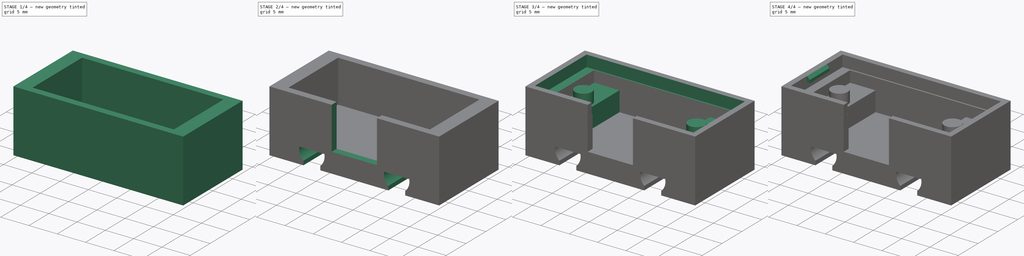
[diagram: build sequence overview — one tinted view per stage of 4, left to right]
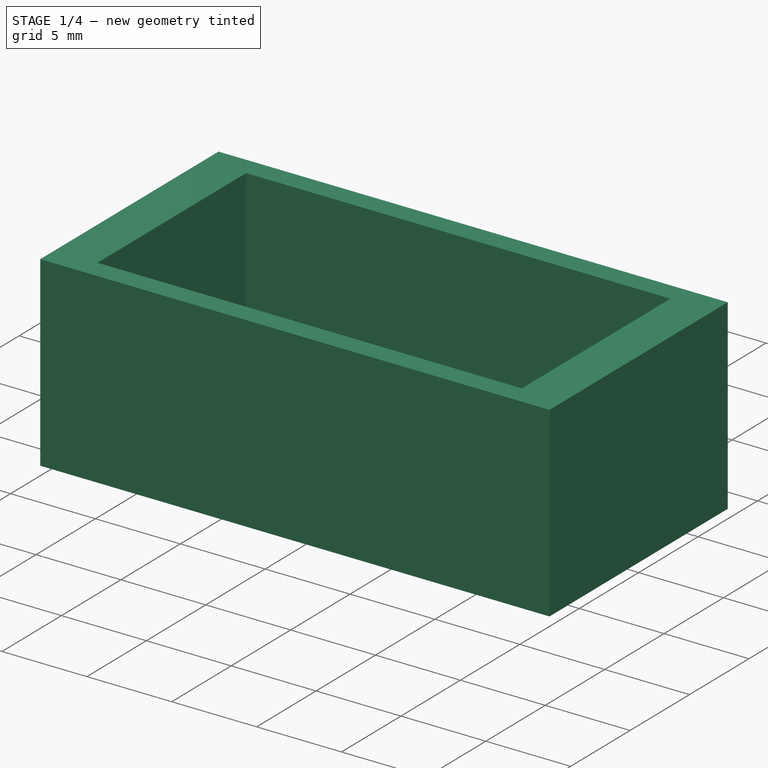
[diagram: stage 1 of 4 — iso view after this stage's code; geometry added in this stage tinted green]
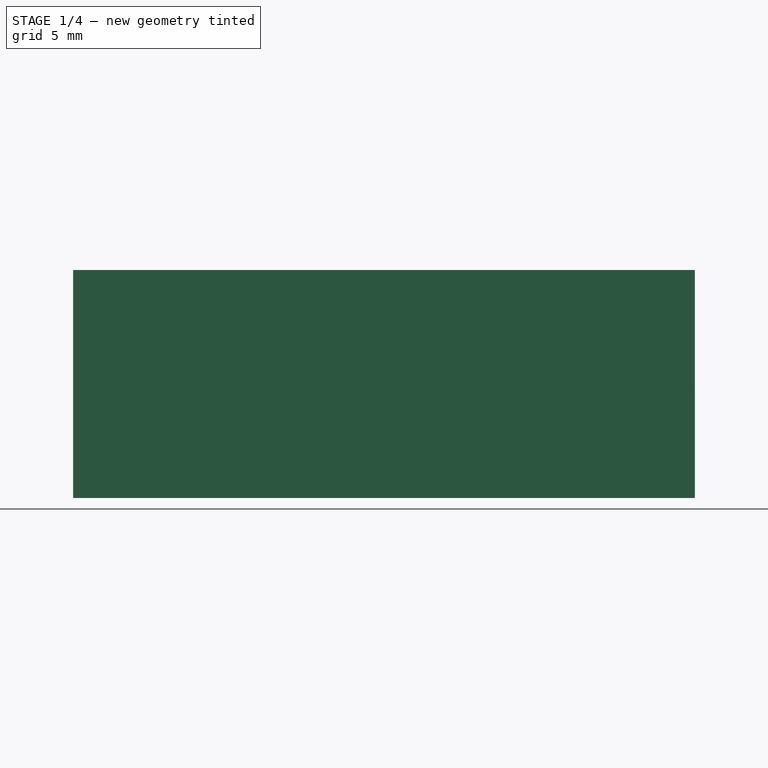
[diagram: stage 1 of 4 — front view after this stage's code; geometry added in this stage tinted green]
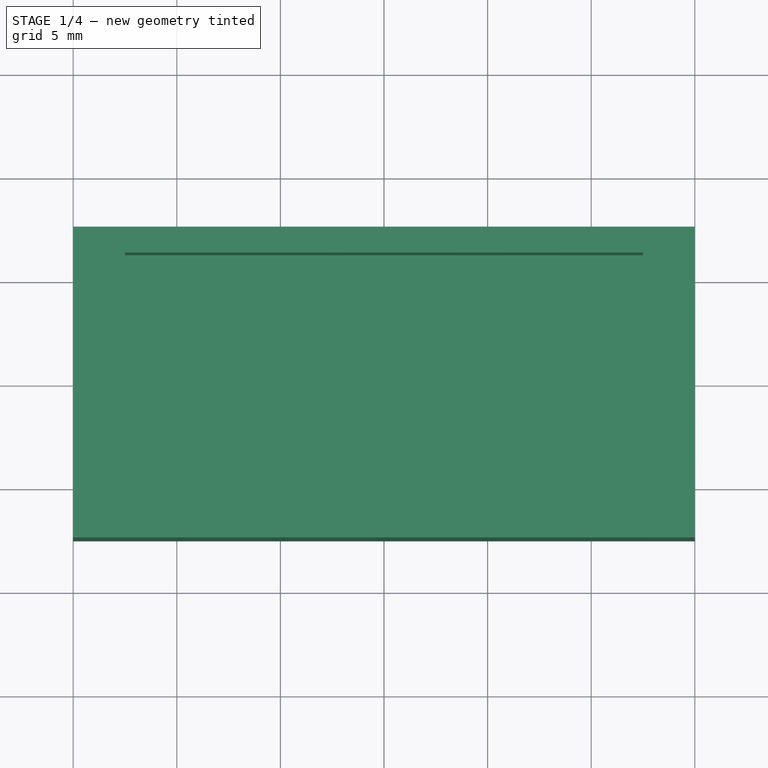
[diagram: stage 1 of 4 — top view after this stage's code; geometry added in this stage tinted green]
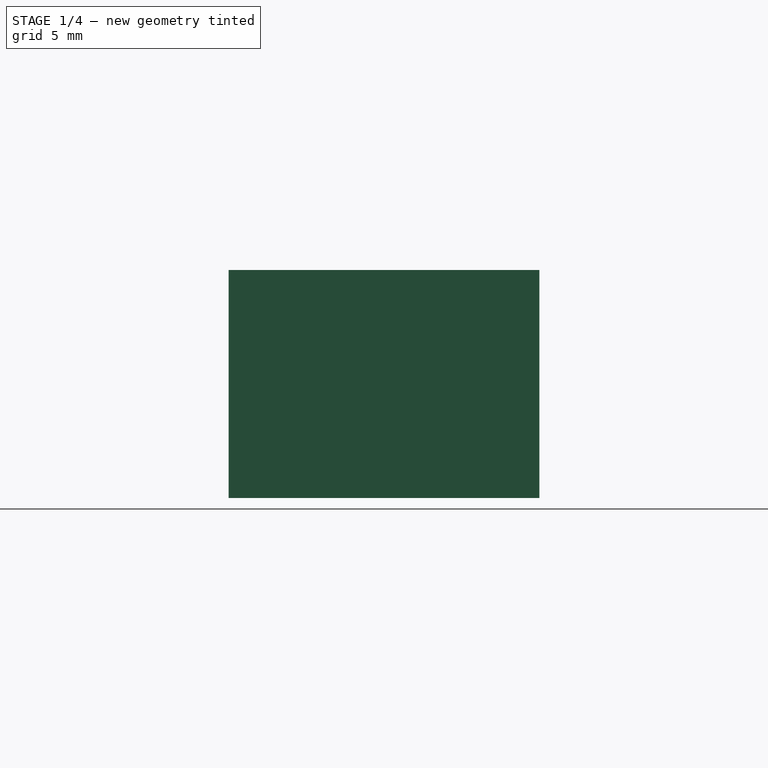
[diagram: stage 1 of 4 — right view after this stage's code; geometry added in this stage tinted green]
FCSTD DOCUMENT  (FreeCAD 0.16R6710 (Git))
Label: bottom
License: All rights reserved
LicenseURL: http://en.wikipedia.org/wiki/All_rights_reserved
objects: Sketcher::SketchObject×8, PartDesign::Pad×5, PartDesign::Pocket×3, PartDesign::LinearPattern×1, PartDesign::Chamfer×1
note: 26 computed .brp shape members not serialized (recipe doc carries the construction recipe); baked Part::Feature solids carry a one-line shape summary decoded from their .brp

FEATURE [Sketcher::SketchObject] Sketch
  sketch-geometry (4):
    g0: LineSegment StartX=-15 StartY=7.5 StartZ=0 EndX=15 EndY=7.5 EndZ=0
    g1: LineSegment StartX=15 StartY=7.5 StartZ=0 EndX=15 EndY=-7.5 EndZ=0
    g2: LineSegment StartX=15 StartY=-7.5 StartZ=0 EndX=-15 EndY=-7.5 EndZ=0
    g3: LineSegment StartX=-15 StartY=-7.5 StartZ=0 EndX=-15 EndY=7.5 EndZ=0
  constraints (12):
    c: Coincident(g0,g1)
    c: Coincident(g1,g2)
    c: Coincident(g2,g3)
    c: Coincident(g3,g0)
    c: Horizontal(g0)
    c: Horizontal(g2)
    c: Vertical(g1)
    c: Vertical(g3)
    c: Symmetric(g0,g0,g-2)
    c: Symmetric(g0,g2,g-1)
    c: DistanceX(g0,g0) = 30
    c: DistanceY(g3,g3) = 15
FEATURE [PartDesign::Pad] Pad
  Length = 3.5
  Length2 = 100
  Sketch = -> Sketch
  Type = 0
FEATURE [Sketcher::SketchObject] Sketch001
  Placement = pos=(0,0,3.5) rot=(0,0,1;0rad)
  Support = -> Pad [Face6]
  sketch-geometry (8):
    g0: LineSegment StartX=-12.5 StartY=6.25 StartZ=0 EndX=12.5 EndY=6.25 EndZ=0
    g1: LineSegment StartX=12.5 StartY=6.25 StartZ=0 EndX=12.5 EndY=-6.25 EndZ=0
    g2: LineSegment StartX=12.5 StartY=-6.25 StartZ=0 EndX=-12.5 EndY=-6.25 EndZ=0
    g3: LineSegment StartX=-12.5 StartY=-6.25 StartZ=0 EndX=-12.5 EndY=6.25 EndZ=0
    g4: LineSegment StartX=-15 StartY=7.5 StartZ=0 EndX=15 EndY=7.5 EndZ=0
    g5: LineSegment StartX=15 StartY=7.5 StartZ=0 EndX=15 EndY=-7.5 EndZ=0
    g6: LineSegment StartX=15 StartY=-7.5 StartZ=0 EndX=-15 EndY=-7.5 EndZ=0
    g7: LineSegment StartX=-15 StartY=-7.5 StartZ=0 EndX=-15 EndY=7.5 EndZ=0
  constraints (24):
    c: Coincident(g0,g1)
    c: Coincident(g1,g2)
    c: Coincident(g2,g3)
    c: Coincident(g3,g0)
    c: Horizontal(g0)
    c: Horizontal(g2)
    c: Vertical(g1)
    c: Vertical(g3)
    c: Coincident(g4,g5)
    c: Coincident(g5,g6)
    c: Coincident(g6,g7)
    c: Coincident(g7,g4)
    c: Horizontal(g4)
    c: Horizontal(g6)
    c: Vertical(g5)
    c: Vertical(g7)
    c: Symmetric(g4,g4,g-2)
    c: Symmetric(g0,g0,g-2)
    c: Symmetric(g4,g6,g-1)
    c: Symmetric(g0,g2,g-1)
    c: DistanceX(g4,g4) = 30
    c: DistanceY(g7,g7) = 15
    c: DistanceX(g0,g0) = 25
    c: DistanceY(g3,g3) = 12.5
FEATURE [PartDesign::Pad] Pad001
  Length = 7.5
  Length2 = 100
  Sketch = -> Sketch001
  Type = 0
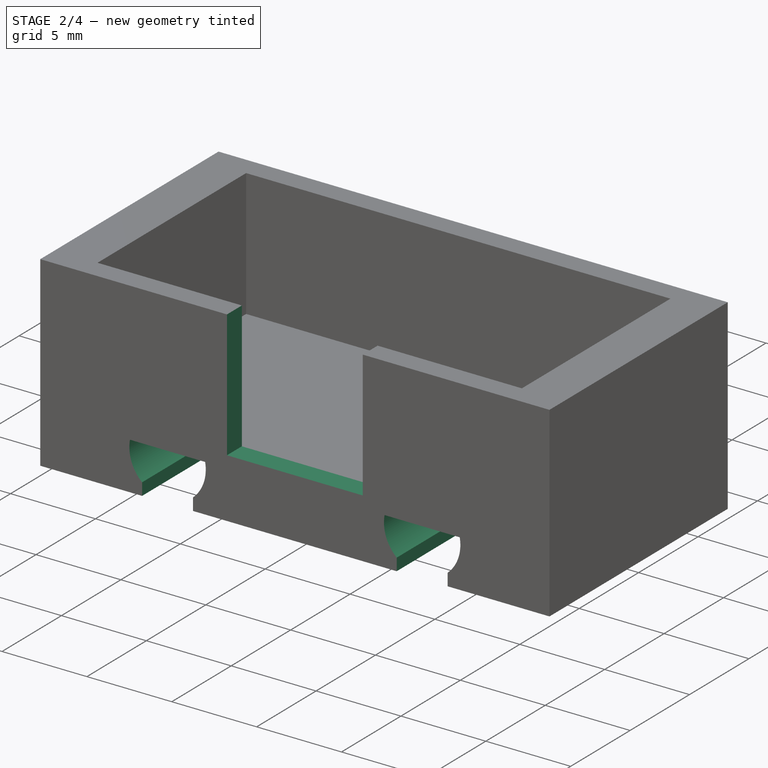
[diagram: stage 2 of 4 — iso view after this stage's code; geometry added in this stage tinted green]
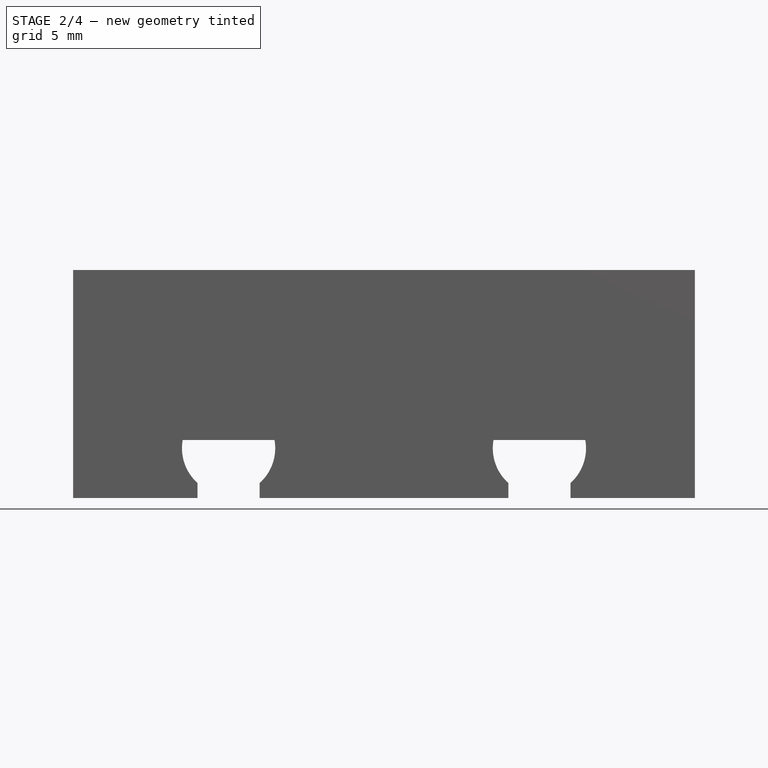
[diagram: stage 2 of 4 — front view after this stage's code; geometry added in this stage tinted green]
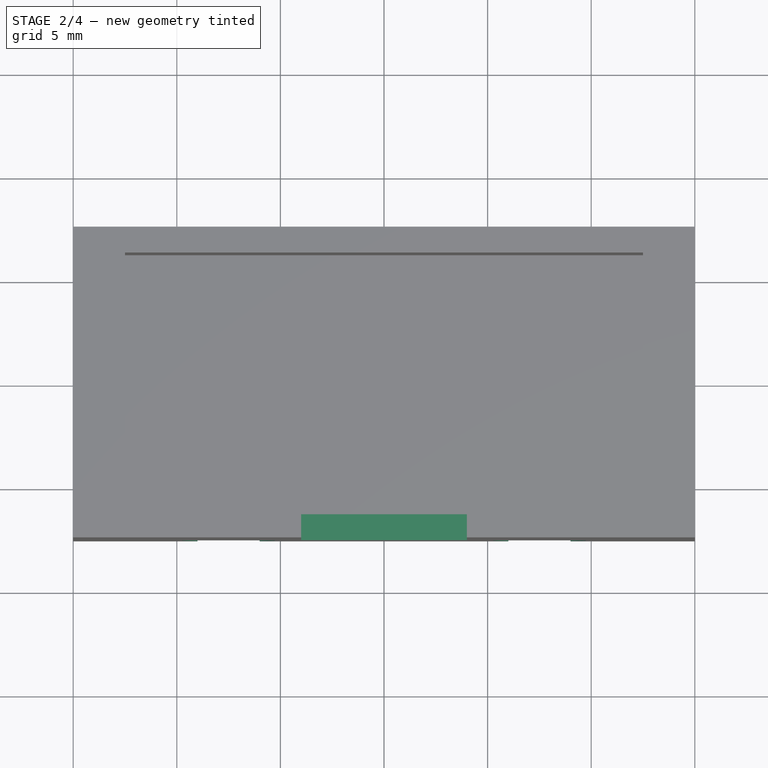
[diagram: stage 2 of 4 — top view after this stage's code; geometry added in this stage tinted green]
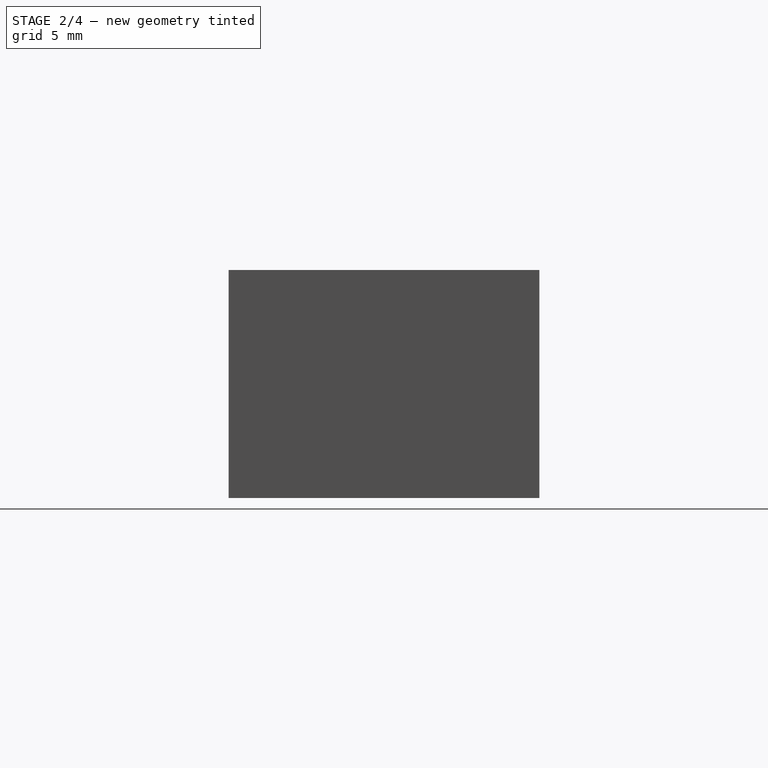
[diagram: stage 2 of 4 — right view after this stage's code; geometry added in this stage tinted green]
FEATURE [Sketcher::SketchObject] Sketch002
  Placement = pos=(0,-7.5,0) rot=(1,0,0;1.5708rad)
  Support = -> Pad001 [Face4]
  sketch-geometry (7):
    g0: LineSegment StartX=-9 StartY=0.722949 StartZ=0 EndX=-9 EndY=0 EndZ=0
    g1: LineSegment StartX=-9 StartY=0 StartZ=0 EndX=-6 EndY=0 EndZ=0
    g2: LineSegment StartX=-6 StartY=0 StartZ=0 EndX=-6 EndY=0.722949 EndZ=0
    g3: ArcOfCircle CenterX=-7.5 CenterY=2.4 CenterZ=0 NormalX=0 NormalY=0 NormalZ=1 Radius=2.25 StartAngle=2.96286 EndAngle=3.98266
    g4: ArcOfCircle CenterX=-7.5 CenterY=2.4 CenterZ=0 NormalX=0 NormalY=0 NormalZ=1 Radius=2.25 StartAngle=5.44212 EndAngle=6.46191
    g5: LineSegment StartX=-9.71416 StartY=2.8 StartZ=0 EndX=-5.28584 EndY=2.8 EndZ=0
    g6: LineSegment [constr] StartX=-7.5 StartY=2.4 StartZ=0 EndX=-7.5 EndY=0 EndZ=0
  constraints (22):
    c: PointOnObject(g0,g-1)
    c: Vertical(g0)
    c: Coincident(g1,g0)
    c: PointOnObject(g1,g-1)
    c: Coincident(g2,g1)
    c: Vertical(g2)
    c: Coincident(g3,g0)
    c: Coincident(g4,g3)
    c: Coincident(g2,g4)
    c: Coincident(g5,g3)
    c: Coincident(g5,g4)
    c: Horizontal(g5)
    c: Coincident(g6,g3)
    c: PointOnObject(g6,g1)
    c: Vertical(g6)
    c: Symmetric(g0,g1,g6)
    c: DistanceY(g6,g6) = 2.4
    c: Radius(g3) = 2.25
    c: Equal(g3,g4)
    c: DistanceX(g1,g1) = 3
    c: DistanceX(g6,g-1) = 7.5
    c: DistanceY(g1,g4) = 2.8
FEATURE [PartDesign::Pocket] Pocket
  Length = 5
  Sketch = -> Sketch002
  Type = 1
FEATURE [PartDesign::LinearPattern] LinearPattern
  Direction = -> Sketch002 [H_Axis]
  Length = 15
  Occurrences = 2
  Originals = -> [Pocket]
FEATURE [Sketcher::SketchObject] Sketch003
  Placement = pos=(0,-7.5,0) rot=(1,0,0;1.5708rad)
  Support = -> LinearPattern [Face19]
  sketch-geometry (4):
    g0: LineSegment StartX=-4 StartY=11 StartZ=0 EndX=4 EndY=11 EndZ=0
    g1: LineSegment StartX=4 StartY=11 StartZ=0 EndX=4 EndY=3.5 EndZ=0
    g2: LineSegment StartX=4 StartY=3.5 StartZ=0 EndX=-4 EndY=3.5 EndZ=0
    g3: LineSegment StartX=-4 StartY=3.5 StartZ=0 EndX=-4 EndY=11 EndZ=0
  constraints (12):
    c: Coincident(g0,g1)
    c: Coincident(g1,g2)
    c: Coincident(g2,g3)
    c: Coincident(g3,g0)
    c: Horizontal(g0)
    c: Horizontal(g2)
    c: Vertical(g1)
    c: Vertical(g3)
    c: Symmetric(g0,g0,g-2)
    c: DistanceX(g0,g0) = 8
    c: DistanceY(g-1,g1) = 3.5
    c: DistanceY(g1,g1) = 7.5
FEATURE [PartDesign::Pocket] Pocket001
  Length = 5
  Sketch = -> Sketch003
  Type = 2
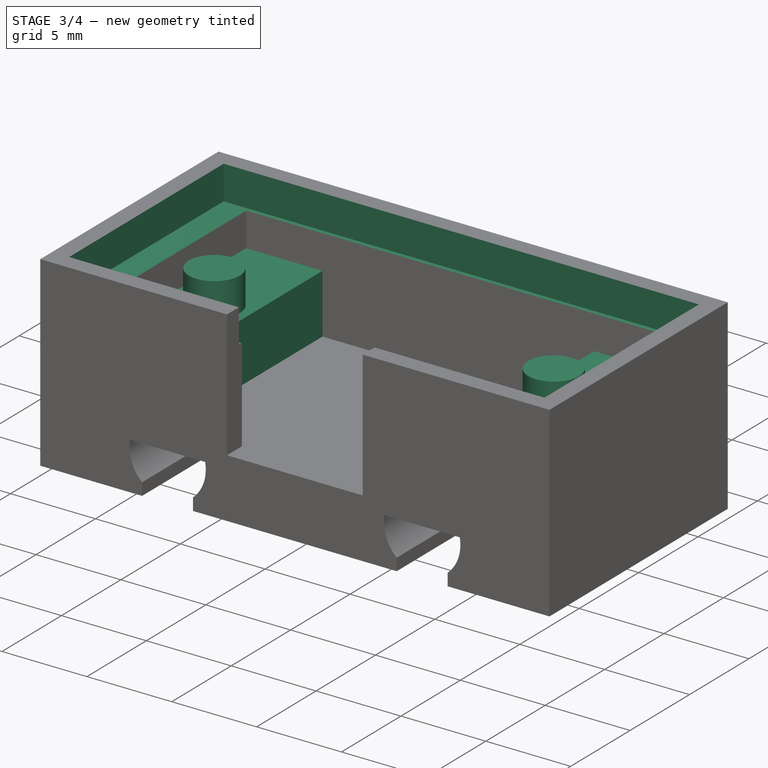
[diagram: stage 3 of 4 — iso view after this stage's code; geometry added in this stage tinted green]
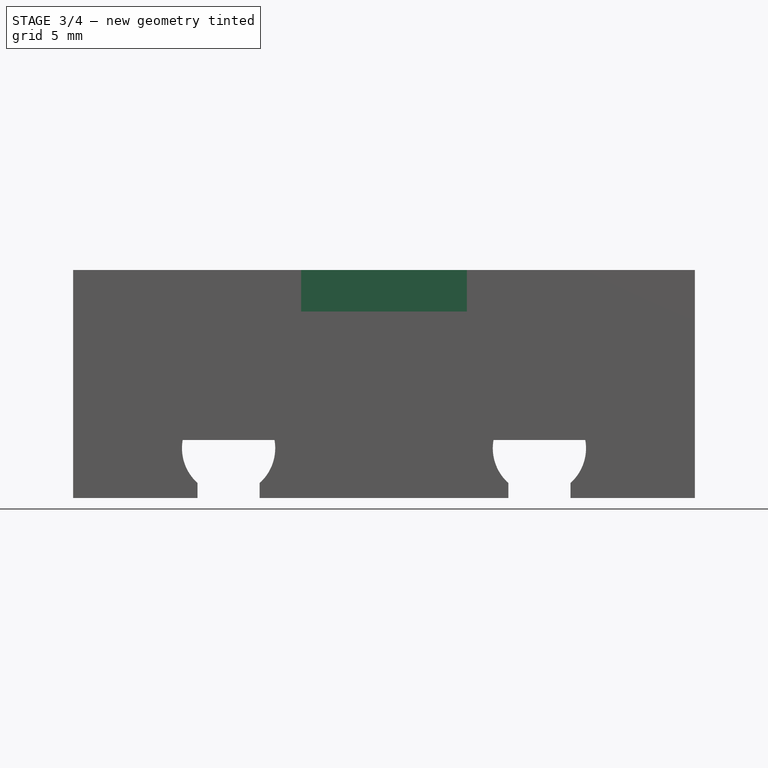
[diagram: stage 3 of 4 — front view after this stage's code; geometry added in this stage tinted green]
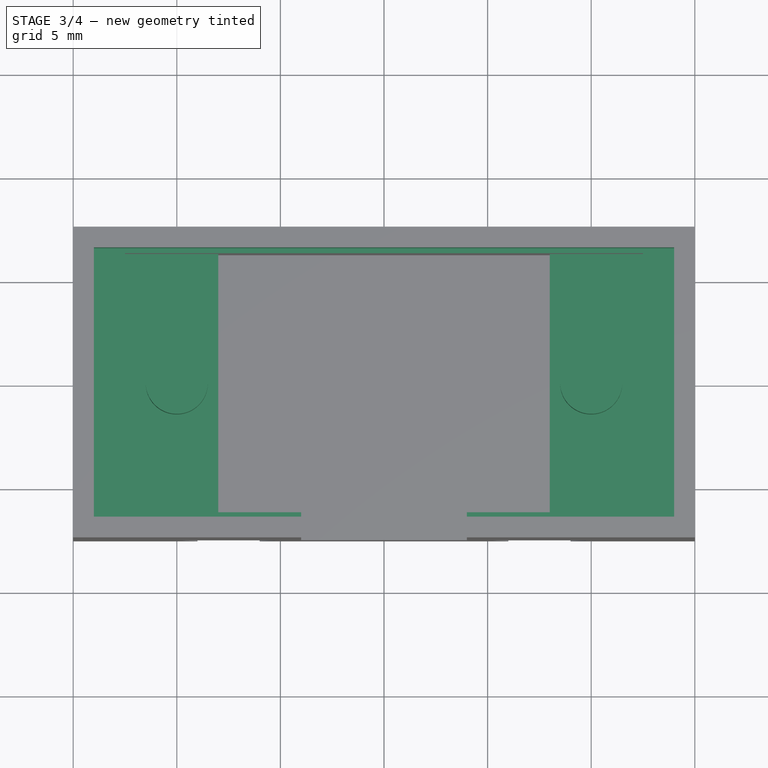
[diagram: stage 3 of 4 — top view after this stage's code; geometry added in this stage tinted green]
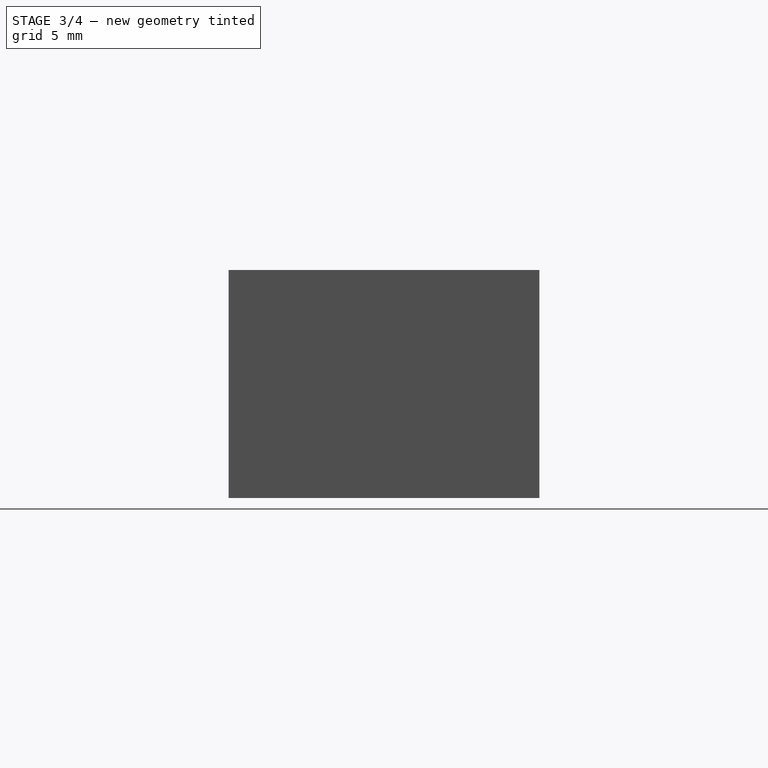
[diagram: stage 3 of 4 — right view after this stage's code; geometry added in this stage tinted green]
FEATURE [Sketcher::SketchObject] Sketch004
  Placement = pos=(0,0,3.5) rot=(0,0,1;0rad)
  Support = -> Pocket001 [Face27]
  sketch-geometry (8):
    g0: LineSegment StartX=-12.5 StartY=6.25 StartZ=0 EndX=-8 EndY=6.25 EndZ=0
    g1: LineSegment StartX=-8 StartY=6.25 StartZ=0 EndX=-8 EndY=-6.25 EndZ=0
    g2: LineSegment StartX=-8 StartY=-6.25 StartZ=0 EndX=-12.5 EndY=-6.25 EndZ=0
    g3: LineSegment StartX=-12.5 StartY=-6.25 StartZ=0 EndX=-12.5 EndY=6.25 EndZ=0
    g4: LineSegment StartX=8 StartY=6.25 StartZ=0 EndX=12.5 EndY=6.25 EndZ=0
    g5: LineSegment StartX=12.5 StartY=6.25 StartZ=0 EndX=12.5 EndY=-6.25 EndZ=0
    g6: LineSegment StartX=12.5 StartY=-6.25 StartZ=0 EndX=8 EndY=-6.25 EndZ=0
    g7: LineSegment StartX=8 StartY=-6.25 StartZ=0 EndX=8 EndY=6.25 EndZ=0
  constraints (23):
    c: Coincident(g0,g1)
    c: Coincident(g1,g2)
    c: Coincident(g2,g3)
    c: Coincident(g3,g0)
    c: Horizontal(g0)
    c: Horizontal(g2)
    c: Vertical(g1)
    c: Vertical(g3)
    c: Coincident(g4,g5)
    c: Coincident(g5,g6)
    c: Coincident(g6,g7)
    c: Coincident(g7,g4)
    c: Horizontal(g4)
    c: Horizontal(g6)
    c: Vertical(g5)
    c: Vertical(g7)
    c: Symmetric(g1,g0,g-1)
    c: Symmetric(g0,g4,g-2)
    c: Symmetric(g6,g4,g-1)
    c: Symmetric(g0,g4,g-2)
    c: DistanceX(g0,g4) = 25
    c: DistanceY(g3,g3) = 12.5
    c: DistanceX(g0,g4) = 16
FEATURE [PartDesign::Pad] Pad002
  Length = 3.5
  Length2 = 100
  Sketch = -> Sketch004
  Type = 0
FEATURE [Sketcher::SketchObject] Sketch005
  Placement = pos=(0,0,7) rot=(0,0,1;0rad)
  Support = -> Pad002 [Face36]
  sketch-geometry (2):
    g0: Circle CenterX=-10 CenterY=0 CenterZ=0 NormalX=0 NormalY=0 NormalZ=1 Radius=1.5
    g1: Circle CenterX=10 CenterY=0 CenterZ=0 NormalX=0 NormalY=0 NormalZ=1 Radius=1.5
  constraints (6):
    c: PointOnObject(g0,g-1)
    c: PointOnObject(g1,g-1)
    c: Radius(g0) = 1.5
    c: Equal(g0,g1)
    c: Symmetric(g0,g1,g-2)
    c: DistanceX(g0,g1) = 20
FEATURE [PartDesign::Pad] Pad003
  Length = 2
  Length2 = 100
  Sketch = -> Sketch005
  Type = 0
FEATURE [Sketcher::SketchObject] Sketch006
  Placement = pos=(0,0,11) rot=(0,0,1;0rad)
  Support = -> Pad003 [Face23]
  sketch-geometry (4):
    g0: LineSegment StartX=-14 StartY=6.5 StartZ=0 EndX=14 EndY=6.5 EndZ=0
    g1: LineSegment StartX=14 StartY=6.5 StartZ=0 EndX=14 EndY=-6.5 EndZ=0
    g2: LineSegment StartX=14 StartY=-6.5 StartZ=0 EndX=-14 EndY=-6.5 EndZ=0
    g3: LineSegment StartX=-14 StartY=-6.5 StartZ=0 EndX=-14 EndY=6.5 EndZ=0
  constraints (12):
    c: Coincident(g0,g1)
    c: Coincident(g1,g2)
    c: Coincident(g2,g3)
    c: Coincident(g3,g0)
    c: Horizontal(g0)
    c: Horizontal(g2)
    c: Vertical(g1)
    c: Vertical(g3)
    c: Symmetric(g0,g0,g-2)
    c: Symmetric(g0,g2,g-1)
    c: DistanceX(g0,g0) = 28
    c: DistanceY(g3,g3) = 13
FEATURE [PartDesign::Pocket] Pocket002
  Length = 2
  Sketch = -> Sketch006
  Type = 0
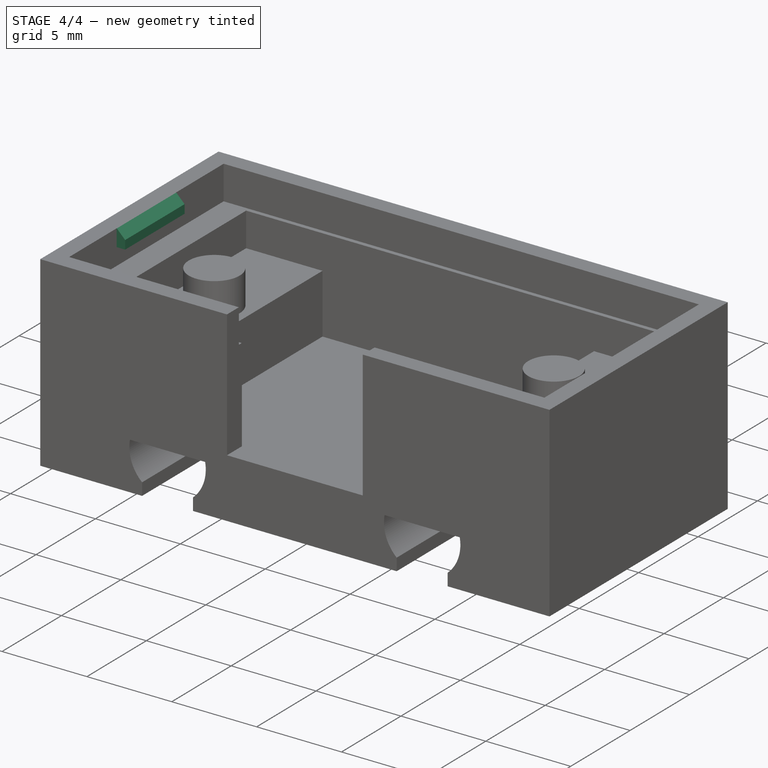
[diagram: stage 4 of 4 — iso view after this stage's code; geometry added in this stage tinted green]
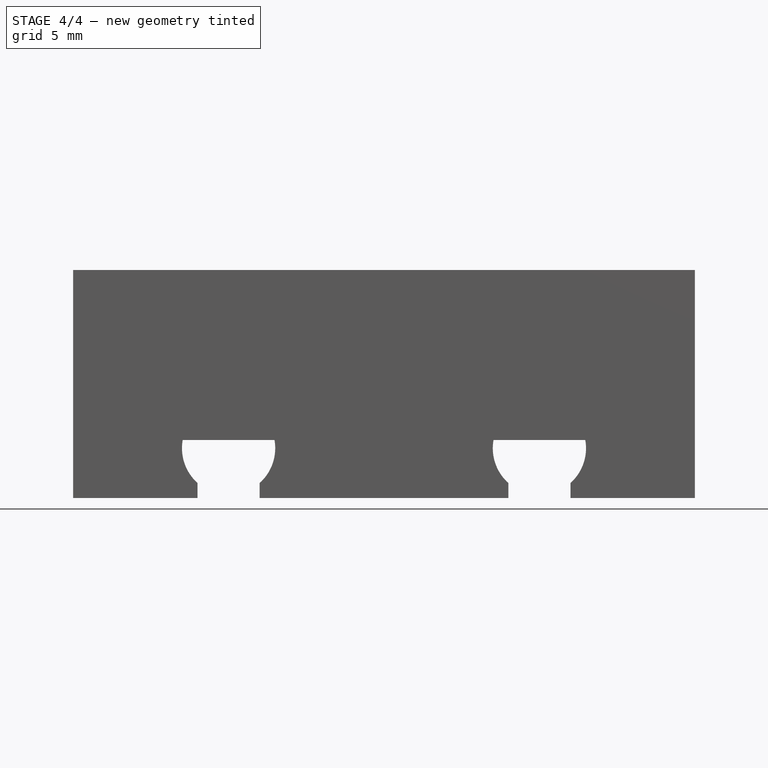
[diagram: stage 4 of 4 — front view after this stage's code; geometry added in this stage tinted green]
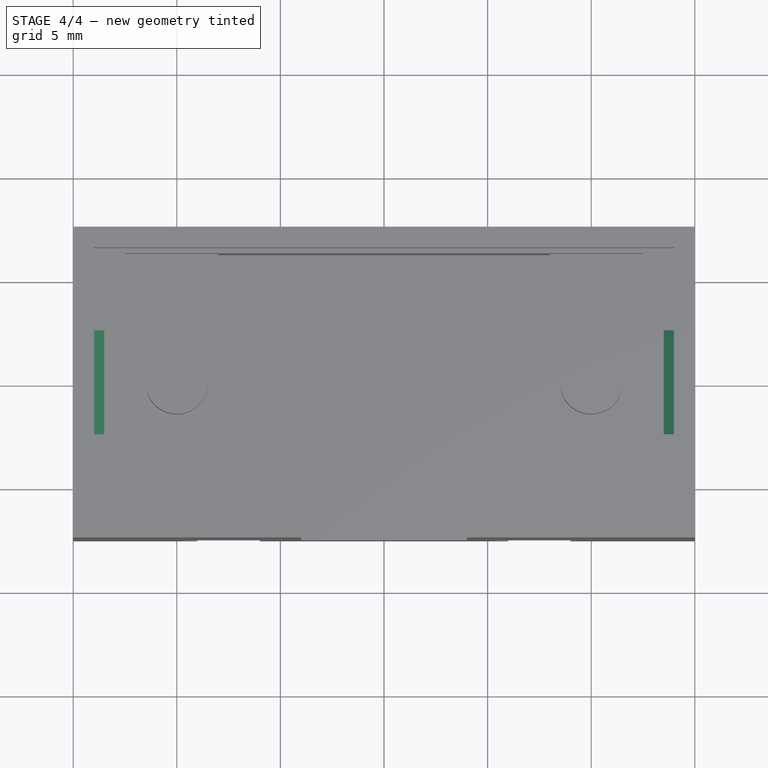
[diagram: stage 4 of 4 — top view after this stage's code; geometry added in this stage tinted green]
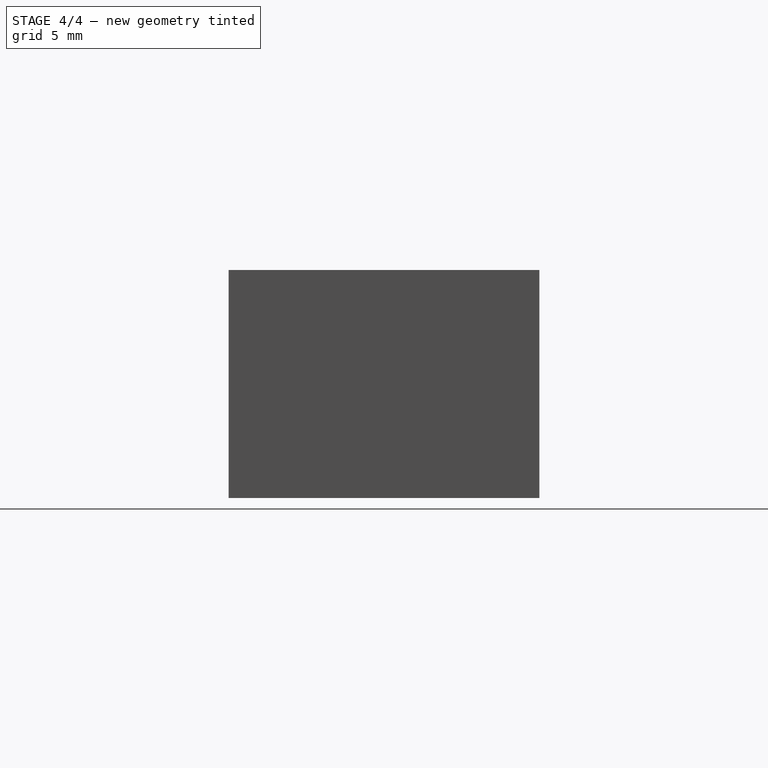
[diagram: stage 4 of 4 — right view after this stage's code; geometry added in this stage tinted green]
FEATURE [Sketcher::SketchObject] Sketch007
  Placement = pos=(0,0,11) rot=(0,0,1;0rad)
  Support = -> Pocket002 [Face23]
  sketch-geometry (8):
    g0: LineSegment StartX=-14 StartY=2.5 StartZ=0 EndX=-13.5 EndY=2.5 EndZ=0
    g1: LineSegment StartX=-13.5 StartY=2.5 StartZ=0 EndX=-13.5 EndY=-2.5 EndZ=0
    g2: LineSegment StartX=-13.5 StartY=-2.5 StartZ=0 EndX=-14 EndY=-2.5 EndZ=0
    g3: LineSegment StartX=-14 StartY=-2.5 StartZ=0 EndX=-14 EndY=2.5 EndZ=0
    g4: LineSegment StartX=13.5 StartY=2.5 StartZ=0 EndX=14 EndY=2.5 EndZ=0
    g5: LineSegment StartX=14 StartY=2.5 StartZ=0 EndX=14 EndY=-2.5 EndZ=0
    g6: LineSegment StartX=14 StartY=-2.5 StartZ=0 EndX=13.5 EndY=-2.5 EndZ=0
    g7: LineSegment StartX=13.5 StartY=-2.5 StartZ=0 EndX=13.5 EndY=2.5 EndZ=0
  constraints (22):
    c: Coincident(g0,g1)
    c: Coincident(g1,g2)
    c: Coincident(g2,g3)
    c: Coincident(g3,g0)
    c: Horizontal(g0)
    c: Horizontal(g2)
    c: Vertical(g1)
    c: Vertical(g3)
    c: Coincident(g4,g5)
    c: Coincident(g5,g6)
    c: Coincident(g6,g7)
    c: Coincident(g7,g4)
    c: Horizontal(g4)
    c: Horizontal(g6)
    c: Vertical(g5)
    c: Vertical(g7)
    c: DistanceX(g0,g0) = 0.5
    c: DistanceY(g3,g3) = 5
    c: Symmetric(g0,g4,g-2)
    c: Symmetric(g2,g5,g-2)
    c: Symmetric(g0,g2,g-1)
    c: DistanceX(g0,g4) = 28
FEATURE [PartDesign::Pad] Pad004
  Length = 1
  Length2 = 100
  Reversed = true
  Sketch = -> Sketch007
  Type = 0
FEATURE [PartDesign::Chamfer] Chamfer
  Base = -> Pad004 [Edge102,Edge105]
  Size = 0.49
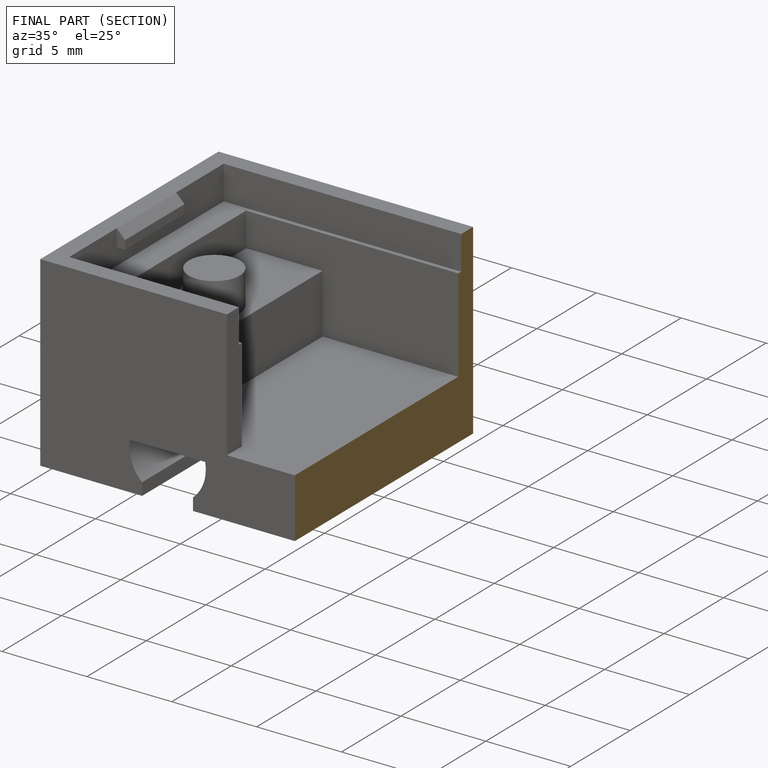
[diagram: finished part — half-section view (interior)]
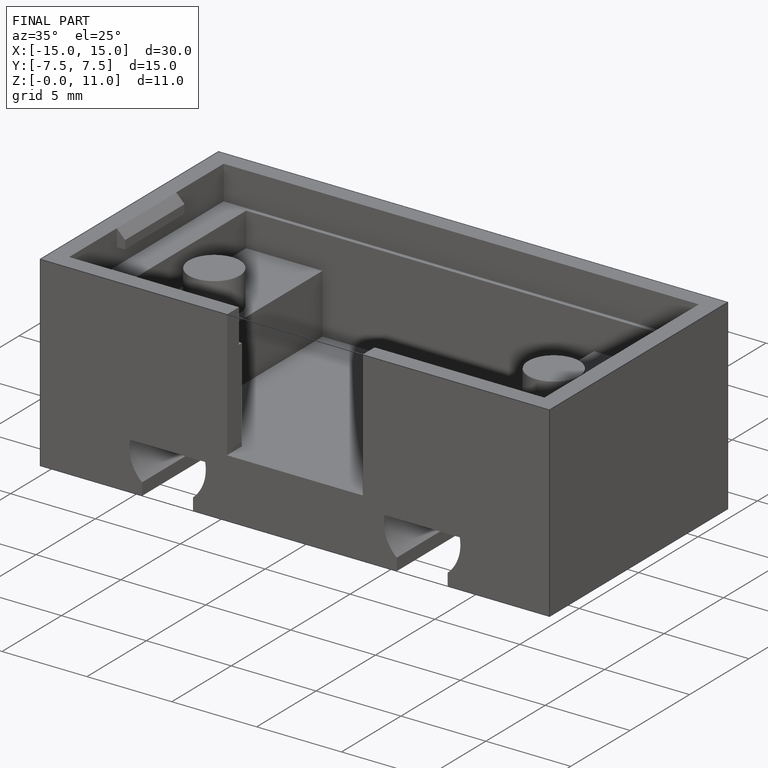
[diagram: finished part — iso view with bounding-box wireframe]
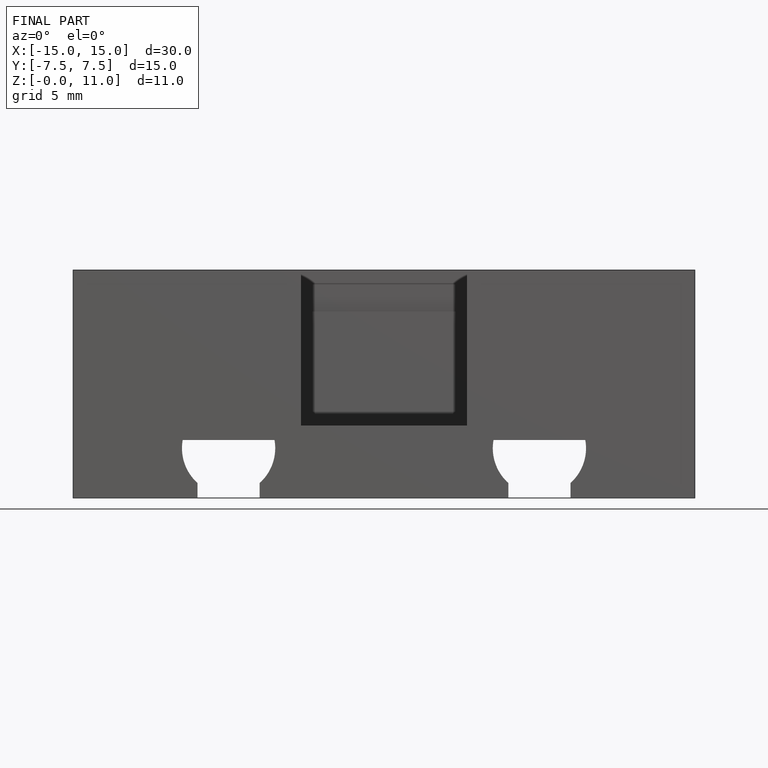
[diagram: finished part — front view with bounding-box wireframe]
